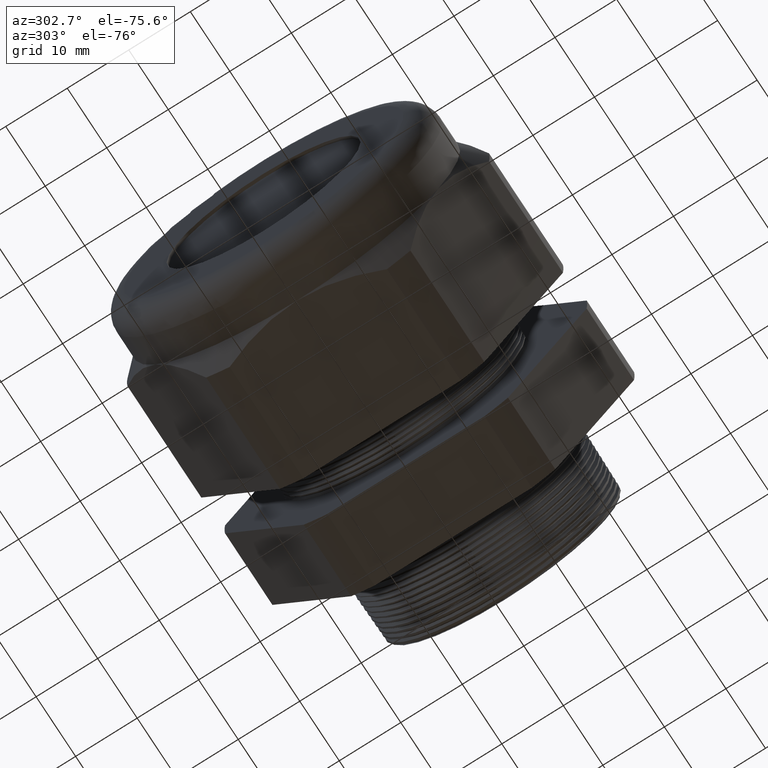
[diagram: clean part render]
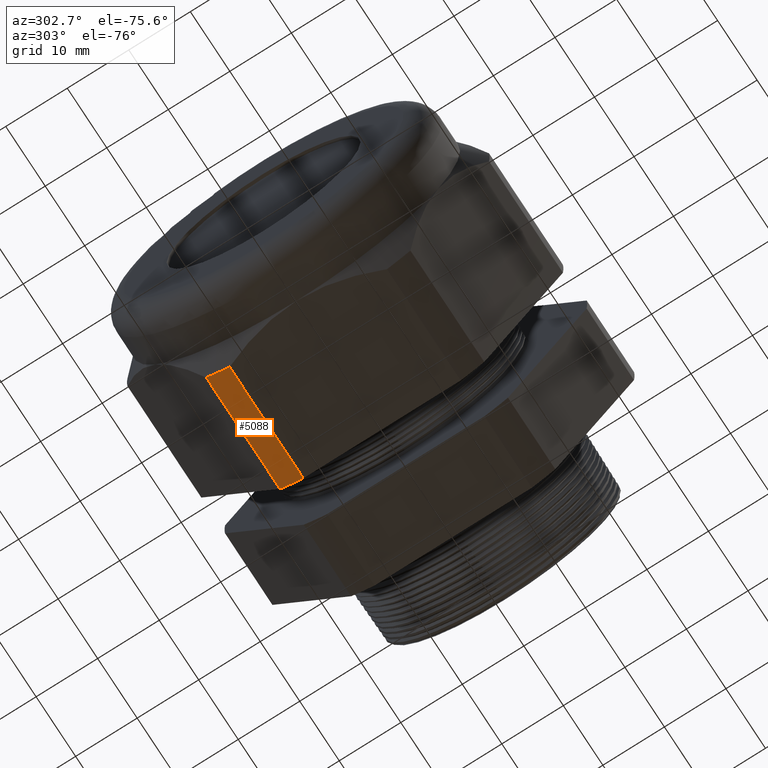
[diagram: same view with one face highlighted and labeled with its STEP entity id]
A machine part, auxiliary view. The second image highlights one B-rep face of the part: STEP entity #5088.
In plain terms, the highlighted cylindrical surface (partial cylindrical patch) has radius 29.4627 mm, axis along (-1, 0, 0).
Its self-contained STEP definition (entity closure, byte-faithful):
#5 = EDGE_CURVE ( 'NONE', #5028, #5019, #500, .T. ) ;
#6 = EDGE_CURVE ( 'NONE', #14, #5031, #495, .T. ) ;
#14 = VERTEX_POINT ( 'NONE', #481 ) ;
#481 = CARTESIAN_POINT ( 'NONE',  ( -1.754342000000000300, 0.5034471198646389700, -1.044999999999999900 ) ) ;
#491 = DIRECTION ( 'NONE',  ( 0.0000000000000000000, 0.0000000000000000000, -1.000000000000000000 ) ) ;
#492 = DIRECTION ( 'NONE',  ( 1.000000000000000000, 0.0000000000000000000, 0.0000000000000000000 ) ) ;
#493 = CARTESIAN_POINT ( 'NONE',  ( -1.754342000000000300, 0.0000000000000000000, 0.0000000000000000000 ) ) ;
#494 = AXIS2_PLACEMENT_3D ( 'NONE', #493, #492, #491 ) ;
#495 = CIRCLE ( 'NONE', #494, 1.159950000000000000 ) ;
#496 = DIRECTION ( 'NONE',  ( 0.0000000000000000000, 0.0000000000000000000, -1.000000000000000000 ) ) ;
#497 = DIRECTION ( 'NONE',  ( 1.000000000000000000, 0.0000000000000000000, 0.0000000000000000000 ) ) ;
#498 = CARTESIAN_POINT ( 'NONE',  ( -1.018802799999999800, 0.0000000000000000000, 0.0000000000000000000 ) ) ;
#499 = AXIS2_PLACEMENT_3D ( 'NONE', #498, #497, #496 ) ;
#500 = CIRCLE ( 'NONE', #499, 1.159950000000000000 ) ;
#1209 = CARTESIAN_POINT ( 'NONE',  ( 0.2000000000000000400, 0.6532729870224188700, -0.9584979952648864400 ) ) ;
#1958 = VECTOR ( 'NONE', #1964, 39.37007874015748100 ) ;
#1964 = DIRECTION ( 'NONE',  ( -1.000000000000000000, 0.0000000000000000000, 0.0000000000000000000 ) ) ;
#3483 = LINE ( 'NONE', #1209, #1958 ) ;
#3513 = CARTESIAN_POINT ( 'NONE',  ( -1.018802799999999800, 0.5034471198646389700, -1.044999999999999900 ) ) ;
#3535 = CARTESIAN_POINT ( 'NONE',  ( -1.018802799999999800, 0.6532729870224188700, -0.9584979952648864400 ) ) ;
#3568 = CARTESIAN_POINT ( 'NONE',  ( -1.754342000000000300, 0.6532729870224188700, -0.9584979952648866600 ) ) ;
#3604 = FACE_OUTER_BOUND ( 'NONE', #5085, .T. ) ;
#3605 = DIRECTION ( 'NONE',  ( -1.000000000000000000, 0.0000000000000000000, 0.0000000000000000000 ) ) ;
#3606 = VECTOR ( 'NONE', #3605, 39.37007874015748100 ) ;
#3607 = CARTESIAN_POINT ( 'NONE',  ( 0.2000000000000000400, 0.5034471198646389700, -1.044999999999999900 ) ) ;
#3608 = LINE ( 'NONE', #3607, #3606 ) ;
#3657 = DIRECTION ( 'NONE',  ( 0.0000000000000000000, 0.0000000000000000000, 1.000000000000000000 ) ) ;
#3658 = DIRECTION ( 'NONE',  ( -1.000000000000000000, 0.0000000000000000000, 0.0000000000000000000 ) ) ;
#3659 = CARTESIAN_POINT ( 'NONE',  ( 0.2000000000000000400, 0.0000000000000000000, 0.0000000000000000000 ) ) ;
#3660 = AXIS2_PLACEMENT_3D ( 'NONE', #3659, #3658, #3657 ) ;
#3662 = CYLINDRICAL_SURFACE ( 'NONE', #3660, 1.159950000000000000 ) ;
#5015 = EDGE_CURVE ( 'NONE', #5019, #5031, #3483, .T. ) ;
#5019 = VERTEX_POINT ( 'NONE', #3535 ) ;
#5028 = VERTEX_POINT ( 'NONE', #3513 ) ;
#5031 = VERTEX_POINT ( 'NONE', #3568 ) ;
#5074 = ORIENTED_EDGE ( 'NONE', *, *, #5087, .T. ) ;
#5085 = EDGE_LOOP ( 'NONE', ( #5074, #5101, #5099, #5086 ) ) ;
#5086 = ORIENTED_EDGE ( 'NONE', *, *, #5, .F. ) ;
#5087 = EDGE_CURVE ( 'NONE', #5028, #14, #3608, .T. ) ;
#5088 = ADVANCED_FACE ( 'NONE', ( #3604 ), #3662, .T. ) ;
#5099 = ORIENTED_EDGE ( 'NONE', *, *, #5015, .F. ) ;
#5101 = ORIENTED_EDGE ( 'NONE', *, *, #6, .T. ) ;